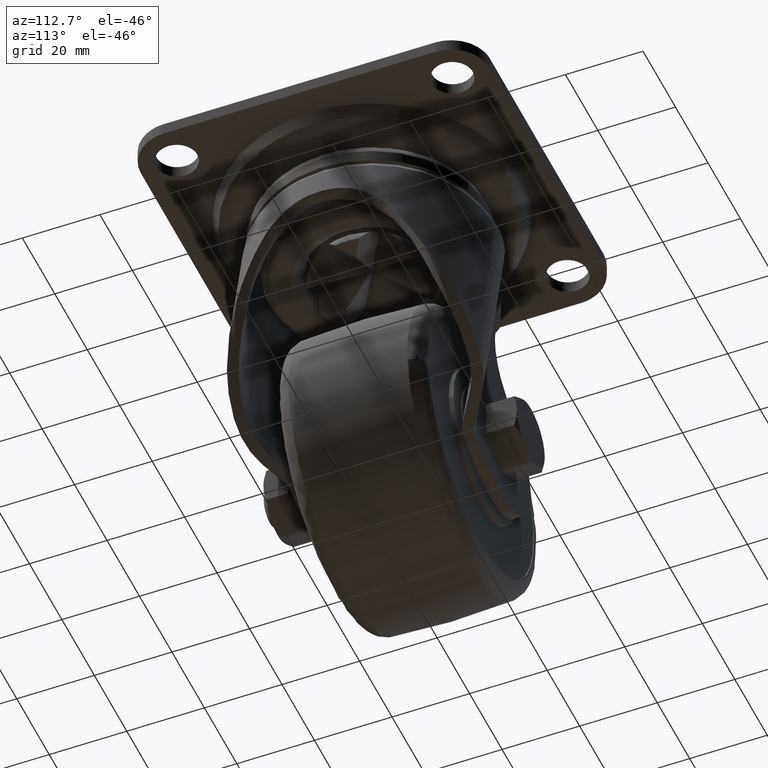
[diagram: clean part render]
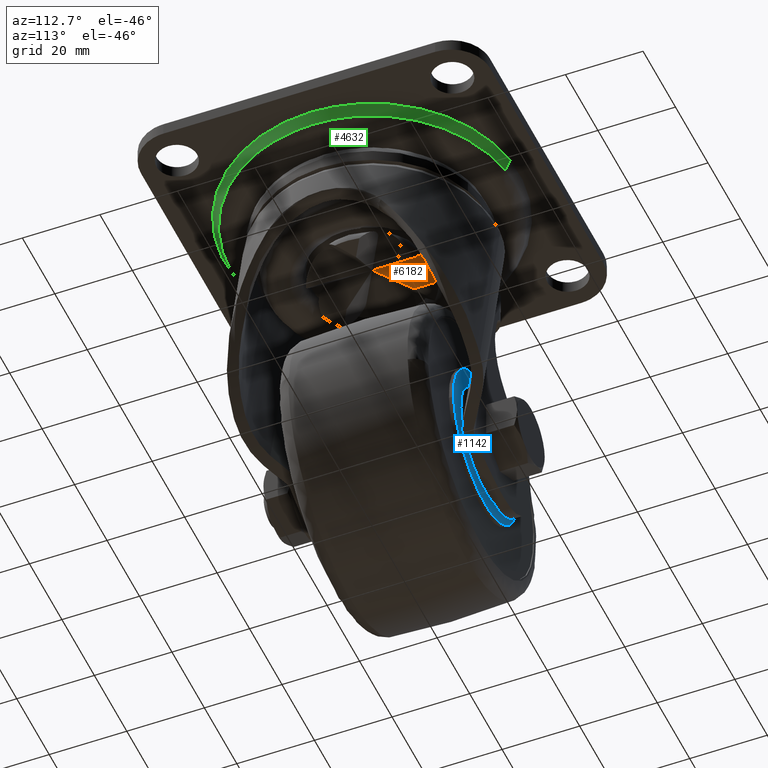
[diagram: same view with three faces highlighted in distinct colors, each labeled with its STEP entity id]
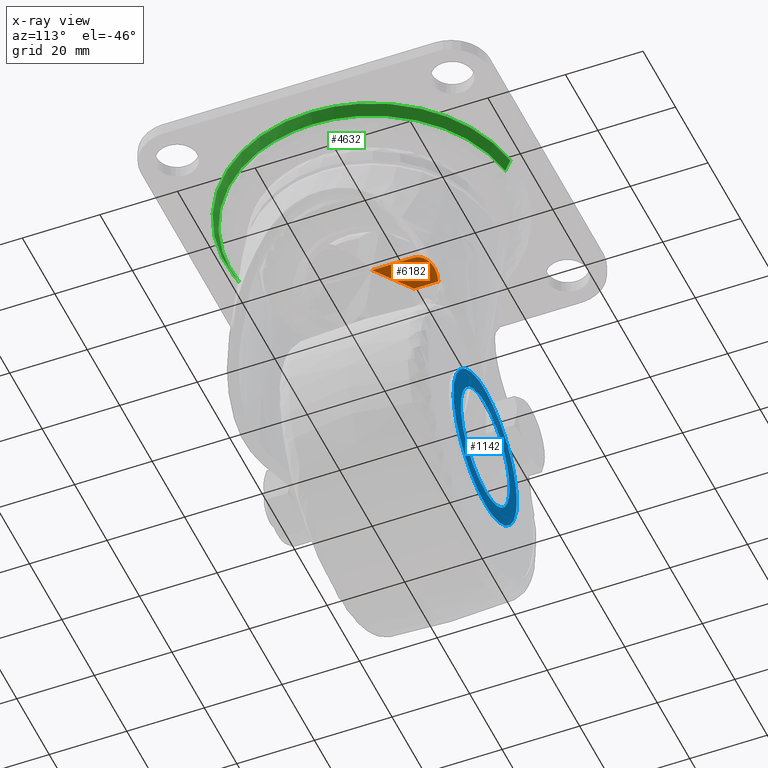
[diagram: x-ray of the same camera — body ghosted, the three highlighted faces saturated]
A machine part, auxiliary view with three faces highlighted in distinct colors.
The next image is the same camera in x-ray (body ghosted, the three faces saturated) — at least one of them is partly hidden behind the body in this view.
Their STEP definitions:

[orange] entity #6182 — the highlighted face is a freeform B-spline surface patch.
#5305=CARTESIAN_POINT('',(-2.881881E-013,-1.665335E-013,-21.0));
#5306=VERTEX_POINT('',#5305);
#5878=CARTESIAN_POINT('',(0.0,10.750000000000000,-21.0));
#5879=VERTEX_POINT('',#5878);
#5893=CARTESIAN_POINT('',(-5.0,14.935277031243841,-26.0));
#5894=VERTEX_POINT('',#5893);
#5895=CARTESIAN_POINT('',(-4.999999999999998,14.935277031243849,-26.0));
#5896=CARTESIAN_POINT('',(-4.728821234962187,15.026061676373139,-25.728821234962190));
#5897=CARTESIAN_POINT('',(-4.456393146544119,15.085996497553770,-25.456393146544119));
#5898=CARTESIAN_POINT('',(-3.909006104591157,15.143370916880301,-24.909006104591160));
#5899=CARTESIAN_POINT('',(-3.634050092896684,15.140883158555020,-24.634050092896690));
#5900=CARTESIAN_POINT('',(-3.288607308404021,15.094615385016990,-24.288607308404021));
#5901=CARTESIAN_POINT('',(-3.219255220768975,15.083148223534590,-24.219255220768979));
#5902=CARTESIAN_POINT('',(-3.081319171905169,15.055871377752410,-24.081319171905172));
#5903=CARTESIAN_POINT('',(-3.012800481734289,15.040088218470000,-24.012800481734288));
#5904=CARTESIAN_POINT('',(-2.808595968010706,14.986287567672290,-23.808595968010710));
#5905=CARTESIAN_POINT('',(-2.674258274598220,14.941835259089171,-23.674258274598220));
#5906=CARTESIAN_POINT('',(-2.409276430200436,14.835300838136179,-23.409276430200439));
#5907=CARTESIAN_POINT('',(-2.278631241724941,14.773223677854700,-23.278631241724948));
#5908=CARTESIAN_POINT('',(-2.085596173098578,14.666109675619159,-23.085596173098580));
#5909=CARTESIAN_POINT('',(-2.021740975388742,14.628067002964400,-23.021740975388749));
#5910=CARTESIAN_POINT('',(-1.895052443199339,14.547104158992910,-22.895052443199351));
#5911=CARTESIAN_POINT('',(-1.832038405705427,14.504046325282101,-22.832038405705418));
#5912=CARTESIAN_POINT('',(-1.646286081721323,14.368424382210630,-22.646286081721311));
#5913=CARTESIAN_POINT('',(-1.526752030011857,14.269468982298930,-22.526752030011860));
#5914=CARTESIAN_POINT('',(-1.296533376556251,14.053984572097040,-22.296533376556251));
#5915=CARTESIAN_POINT('',(-1.185845019687259,13.937463018887930,-22.185845019687250));
#5916=CARTESIAN_POINT('',(-1.026926351819034,13.748553671563601,-22.026926351819039));
#5917=CARTESIAN_POINT('',(-0.975142479929227,13.683222688301729,-21.975142479929229));
#5918=CARTESIAN_POINT('',(-0.874082980473878,13.547579744579220,-21.874082980473879));
#5919=CARTESIAN_POINT('',(-0.824697844114052,13.477075982662789,-21.824697844114059));
#5920=CARTESIAN_POINT('',(-0.682440159057429,13.260585383272090,-21.682440159057428));
#5921=CARTESIAN_POINT('',(-0.594848141657144,13.108932136964309,-21.594848141657149));
#5922=CARTESIAN_POINT('',(-0.434841068627161,12.790281673353350,-21.434841068627168));
#5923=CARTESIAN_POINT('',(-0.362415031534353,12.623295558354680,-21.362415031534351));
#5924=CARTESIAN_POINT('',(-0.282371095723011,12.403958886042171,-21.282371095723018));
#5925=CARTESIAN_POINT('',(-0.266856794579737,12.359457266251580,-21.266856794579741));
#5926=CARTESIAN_POINT('',(-0.237103889300535,12.269910764938190,-21.237103889300538));
#5927=CARTESIAN_POINT('',(-0.194407040711843,12.134865507305079,-21.194407040711852));
#5928=CARTESIAN_POINT('',(-0.157489257470454,11.997650663957060,-21.157489257470459));
#5929=CARTESIAN_POINT('',(-0.091409426795495,11.720309306842720,-21.091409426795501));
#5930=CARTESIAN_POINT('',(-0.057659291884305,11.531547068344080,-21.057659291884299));
#5931=CARTESIAN_POINT('',(-0.023346788679003,11.242279571666160,-21.023346788679010));
#5932=CARTESIAN_POINT('',(-0.014637230590430,11.144832944170620,-21.014637230590420));
#5933=CARTESIAN_POINT('',(-0.005863442205441,10.997052238432881,-21.005863442205449));
#5934=CARTESIAN_POINT('',(-0.003653742240349,10.947409700509819,-21.003653742240349));
#5935=CARTESIAN_POINT('',(-0.000726096002888,10.848524956846139,-21.000726096002889));
#5936=CARTESIAN_POINT('',(3.470066E-014,10.799203147555650,-20.999999999999961));
#5937=CARTESIAN_POINT('',(3.465109E-014,10.749999999999989,-20.999999999999972));
#5938=B_SPLINE_CURVE_WITH_KNOTS('',3,(#5895,#5896,#5897,#5898,#5899,#5900,#5901,#5902,#5903,#5904,#5905,#5906,#5907,#5908,#5909,#5910,#5911,#5912,#5913,#5914,#5915,#5916,#5917,#5918,#5919,#5920,#5921,#5922,#5923,#5924,#5925,#5926,#5927,#5928,#5929,#5930,#5931,#5932,#5933,#5934,#5935,#5936,#5937),.UNSPECIFIED.,.F.,.U.,(4,2,2,2,2,2,2,2,2,2,2,2,2,2,2,2,1,2,2,2,2,4),(0.0,0.125000000000003,0.250000000000005,0.281250000000006,0.312500000000006,0.375000000000006,0.437500000000007,0.468750000000007,0.500000000000007,0.562500000000006,0.625000000000006,0.656250000000005,0.687500000000005,0.750000000000004,0.812500000000003,0.828125000000002,0.843750000000002,0.875000000000002,0.937500000000001,0.968750000000001,0.984375000000000,1.0),.UNSPECIFIED.);
#5939=EDGE_CURVE('',#5894,#5879,#5938,.T.);
#5962=CARTESIAN_POINT('',(-5.000000000000110,8.660254037844990,-26.0));
#5963=VERTEX_POINT('',#5962);
#5970=CARTESIAN_POINT('',(-5.000000000000110,8.660254037844990,-26.0));
#5971=CARTESIAN_POINT('',(-5.0,14.935277031243841,-26.0));
#5972=QUASI_UNIFORM_CURVE('',1,(#5970,#5971),.UNSPECIFIED.,.F.,.U.);
#5973=EDGE_CURVE('',#5963,#5894,#5972,.T.);
#6126=CARTESIAN_POINT('',(-2.881881E-013,-1.665335E-013,-21.0));
#6127=CARTESIAN_POINT('',(-5.000000000000110,8.660254037844990,-26.0));
#6128=QUASI_UNIFORM_CURVE('',1,(#6126,#6127),.UNSPECIFIED.,.F.,.U.);
#6129=EDGE_CURVE('',#5306,#5963,#6128,.T.);
#6167=CARTESIAN_POINT('',(-5.249749990309087,-0.755892616972131,-26.249749990309091));
#6168=CARTESIAN_POINT('',(0.249750124419484,-0.755892616972131,-20.750249875580518));
#6169=CARTESIAN_POINT('',(-5.249749990309087,15.888878934749570,-26.249749990309091));
#6170=CARTESIAN_POINT('',(0.249750124419484,15.888878934749570,-20.750249875580518));
#6171=B_SPLINE_SURFACE_WITH_KNOTS('',1,1,((#6167,#6169),(#6168,#6170)),.UNSPECIFIED.,.F.,.F.,.U.,(2,2),(2,2),(0.0,7.777467648521536),(0.0,16.644771551721700),.UNSPECIFIED.);
#6172=CARTESIAN_POINT('',(0.0,10.750000000000000,-21.0));
#6173=CARTESIAN_POINT('',(-2.881881E-013,-1.665335E-013,-21.0));
#6174=QUASI_UNIFORM_CURVE('',1,(#6172,#6173),.UNSPECIFIED.,.F.,.U.);
#6175=EDGE_CURVE('',#5879,#5306,#6174,.T.);
#6176=ORIENTED_EDGE('',*,*,#6175,.T.);
#6177=ORIENTED_EDGE('',*,*,#6129,.T.);
#6178=ORIENTED_EDGE('',*,*,#5973,.T.);
#6179=ORIENTED_EDGE('',*,*,#5939,.T.);
#6180=EDGE_LOOP('',(#6176,#6177,#6178,#6179));
#6181=FACE_OUTER_BOUND('',#6180,.T.);
#6182=ADVANCED_FACE('',(#6181),#6171,.F.);

[blue] entity #1142 — the highlighted face is a freeform B-spline surface patch.
#761=CARTESIAN_POINT('',(-7.027978023676607,19.899999999999999,-69.415728093098195));
#762=VERTEX_POINT('',#761);
#763=CARTESIAN_POINT('',(-22.0,19.899999999999999,-53.500000000000007));
#764=VERTEX_POINT('',#763);
#765=CARTESIAN_POINT('',(-7.027978023676605,19.900000000000002,-69.415728093098167));
#766=CARTESIAN_POINT('',(-7.0,19.900000000000006,-68.958291449516608));
#767=CARTESIAN_POINT('',(-7.0,19.899999999999999,-68.500000000000000));
#768=CARTESIAN_POINT('',(-6.999999999999999,19.900000000000009,-53.500000000000007));
#769=CARTESIAN_POINT('',(-22.0,19.899999999999999,-53.500000000000007));
#777=(BOUNDED_CURVE()B_SPLINE_CURVE(2,(#765,#766,#767,#768,#769),.UNSPECIFIED.,.F.,.U.)B_SPLINE_CURVE_WITH_KNOTS((3,2,3),(0.239332962241100,0.250000000000000,0.500000000000000),.UNSPECIFIED.)CURVE()GEOMETRIC_REPRESENTATION_ITEM()RATIONAL_B_SPLINE_CURVE((0.976072041671341,0.987502787902365,1.0,0.707106781186547,1.0))REPRESENTATION_ITEM(''));
#778=EDGE_CURVE('',#762,#764,#777,.T.);
#787=CARTESIAN_POINT('',(-36.972021976323390,19.899999999999999,-67.584271906901805));
#788=VERTEX_POINT('',#787);
#794=CARTESIAN_POINT('',(-22.0,19.899999999999999,-53.500000000000007));
#795=CARTESIAN_POINT('',(-36.110591003514294,19.900000000000006,-53.500000000000000));
#796=CARTESIAN_POINT('',(-36.972021976323397,19.900000000000002,-67.584271906901819));
#804=(BOUNDED_CURVE()B_SPLINE_CURVE(2,(#794,#795,#796),.UNSPECIFIED.,.F.,.U.)B_SPLINE_CURVE_WITH_KNOTS((3,3),(0.500000000000000,0.739332962241100),.UNSPECIFIED.)CURVE()GEOMETRIC_REPRESENTATION_ITEM()RATIONAL_B_SPLINE_CURVE((1.0,0.719603993284183,0.976072041671341))REPRESENTATION_ITEM(''));
#805=EDGE_CURVE('',#764,#788,#804,.T.);
#828=CARTESIAN_POINT('',(-22.0,19.899999999999999,-83.500000000000000));
#829=VERTEX_POINT('',#828);
#830=CARTESIAN_POINT('',(-22.0,19.899999999999999,-83.500000000000000));
#831=CARTESIAN_POINT('',(-7.889408996485718,19.900000000000002,-83.499999999999986));
#832=CARTESIAN_POINT('',(-7.027978023676605,19.900000000000006,-69.415728093098210));
#840=(BOUNDED_CURVE()B_SPLINE_CURVE(2,(#830,#831,#832),.UNSPECIFIED.,.F.,.U.)B_SPLINE_CURVE_WITH_KNOTS((3,3),(0.0,0.239332962241100),.UNSPECIFIED.)CURVE()GEOMETRIC_REPRESENTATION_ITEM()RATIONAL_B_SPLINE_CURVE((1.0,0.719603993284183,0.976072041671341))REPRESENTATION_ITEM(''));
#841=EDGE_CURVE('',#829,#762,#840,.T.);
#843=CARTESIAN_POINT('',(-36.972021976323390,19.900000000000006,-67.584271906901805));
#844=CARTESIAN_POINT('',(-37.0,19.900000000000006,-68.041708550483392));
#845=CARTESIAN_POINT('',(-37.0,19.899999999999999,-68.500000000000000));
#846=CARTESIAN_POINT('',(-37.000000000000007,19.900000000000009,-83.500000000000000));
#847=CARTESIAN_POINT('',(-22.0,19.899999999999999,-83.500000000000000));
#855=(BOUNDED_CURVE()B_SPLINE_CURVE(2,(#843,#844,#845,#846,#847),.UNSPECIFIED.,.F.,.U.)B_SPLINE_CURVE_WITH_KNOTS((3,2,3),(0.739332962241100,0.750000000000000,1.0),.UNSPECIFIED.)CURVE()GEOMETRIC_REPRESENTATION_ITEM()RATIONAL_B_SPLINE_CURVE((0.976072041671341,0.987502787902365,1.0,0.707106781186547,1.0))REPRESENTATION_ITEM(''));
#856=EDGE_CURVE('',#788,#829,#855,.T.);
#1065=CARTESIAN_POINT('',(-43.447570052529180,19.899999999999999,-47.051950075589573));
#1066=CARTESIAN_POINT('',(-43.447570052529180,19.899999999999999,-89.948050970471968));
#1067=CARTESIAN_POINT('',(-0.552430644845163,19.899999999999999,-47.051950075589573));
#1068=CARTESIAN_POINT('',(-0.552430644845163,19.899999999999999,-89.948050970471968));
#1069=B_SPLINE_SURFACE_WITH_KNOTS('',1,1,((#1065,#1067),(#1066,#1068)),.UNSPECIFIED.,.F.,.F.,.U.,(2,2),(2,2),(0.0,42.896100894882402),(0.0,42.895139407684013),.UNSPECIFIED.);
#1070=CARTESIAN_POINT('',(-41.463630303671167,19.899999999999999,-67.309581837669725));
#1071=VERTEX_POINT('',#1070);
#1072=CARTESIAN_POINT('',(-22.0,19.899999999999999,-88.000000000000014));
#1073=VERTEX_POINT('',#1072);
#1074=CARTESIAN_POINT('',(-41.463630303671174,19.900000000000002,-67.309581837669725));
#1075=CARTESIAN_POINT('',(-41.499999999979643,19.900000000000002,-67.904235334734281));
#1076=CARTESIAN_POINT('',(-41.499999999979948,19.899999999999999,-68.500000000001222));
#1077=CARTESIAN_POINT('',(-41.499999999990280,19.900000000000006,-88.000000000000611));
#1078=CARTESIAN_POINT('',(-22.0,19.899999999999999,-88.000000000000014));
#1086=(BOUNDED_CURVE()B_SPLINE_CURVE(2,(#1074,#1075,#1076,#1077,#1078),.UNSPECIFIED.,.F.,.U.)B_SPLINE_CURVE_WITH_KNOTS((3,2,3),(0.739333213643509,0.750000000000000,1.0),.UNSPECIFIED.)CURVE()GEOMETRIC_REPRESENTATION_ITEM()RATIONAL_B_SPLINE_CURVE((0.976072580475152,0.987503082438608,1.0,0.707106781186548,1.0))REPRESENTATION_ITEM(''));
#1087=EDGE_CURVE('',#1071,#1073,#1086,.T.);
#1088=ORIENTED_EDGE('',*,*,#1087,.F.);
#1089=CARTESIAN_POINT('',(-22.0,19.899999999999999,-49.0));
#1090=VERTEX_POINT('',#1089);
#1091=CARTESIAN_POINT('',(-22.0,19.899999999999999,-49.0));
#1092=CARTESIAN_POINT('',(-40.343795081568693,19.899999999999999,-49.000000000000632));
#1093=CARTESIAN_POINT('',(-41.463630303671174,19.900000000000002,-67.309581837669725));
#1101=(BOUNDED_CURVE()B_SPLINE_CURVE(2,(#1091,#1092,#1093),.UNSPECIFIED.,.F.,.U.)B_SPLINE_CURVE_WITH_KNOTS((3,3),(0.500000000000000,0.739333213643509),.UNSPECIFIED.)CURVE()GEOMETRIC_REPRESENTATION_ITEM()RATIONAL_B_SPLINE_CURVE((1.0,0.719603698747940,0.976072580475152))REPRESENTATION_ITEM(''));
#1102=EDGE_CURVE('',#1090,#1071,#1101,.T.);
#1103=ORIENTED_EDGE('',*,*,#1102,.F.);
#1104=CARTESIAN_POINT('',(-2.536369696328826,19.899999999999999,-69.690418162330275));
#1105=VERTEX_POINT('',#1104);
#1106=CARTESIAN_POINT('',(-2.536369696328823,19.899999999999999,-69.690418162330275));
#1107=CARTESIAN_POINT('',(-2.500000000020367,19.899999999999999,-69.095764665265705));
#1108=CARTESIAN_POINT('',(-2.500000000020052,19.899999999999999,-68.499999999998764));
#1109=CARTESIAN_POINT('',(-2.500000000009720,19.900000000000006,-48.999999999999410));
#1110=CARTESIAN_POINT('',(-22.0,19.899999999999999,-49.0));
#1118=(BOUNDED_CURVE()B_SPLINE_CURVE(2,(#1106,#1107,#1108,#1109,#1110),.UNSPECIFIED.,.F.,.U.)B_SPLINE_CURVE_WITH_KNOTS((3,2,3),(0.239333213643509,0.250000000000000,0.500000000000000),.UNSPECIFIED.)CURVE()GEOMETRIC_REPRESENTATION_ITEM()RATIONAL_B_SPLINE_CURVE((0.976072580475152,0.987503082438608,1.0,0.707106781186548,1.0))REPRESENTATION_ITEM(''));
#1119=EDGE_CURVE('',#1105,#1090,#1118,.T.);
#1120=ORIENTED_EDGE('',*,*,#1119,.F.);
#1121=CARTESIAN_POINT('',(-22.0,19.899999999999999,-88.000000000000014));
#1122=CARTESIAN_POINT('',(-3.656204918431297,19.900000000000002,-87.999999999999389));
#1123=CARTESIAN_POINT('',(-2.536369696328823,19.899999999999999,-69.690418162330275));
#1131=(BOUNDED_CURVE()B_SPLINE_CURVE(2,(#1121,#1122,#1123),.UNSPECIFIED.,.F.,.U.)B_SPLINE_CURVE_WITH_KNOTS((3,3),(0.0,0.239333213643509),.UNSPECIFIED.)CURVE()GEOMETRIC_REPRESENTATION_ITEM()RATIONAL_B_SPLINE_CURVE((1.0,0.719603698747940,0.976072580475152))REPRESENTATION_ITEM(''));
#1132=EDGE_CURVE('',#1073,#1105,#1131,.T.);
#1133=ORIENTED_EDGE('',*,*,#1132,.F.);
#1134=EDGE_LOOP('',(#1088,#1103,#1120,#1133));
#1135=FACE_OUTER_BOUND('',#1134,.T.);
#1136=ORIENTED_EDGE('',*,*,#805,.T.);
#1137=ORIENTED_EDGE('',*,*,#856,.T.);
#1138=ORIENTED_EDGE('',*,*,#841,.T.);
#1139=ORIENTED_EDGE('',*,*,#778,.T.);
#1140=EDGE_LOOP('',(#1136,#1137,#1138,#1139));
#1141=FACE_BOUND('',#1140,.T.);
#1142=ADVANCED_FACE('',(#1135,#1141),#1069,.F.);

[green] entity #4632 — the highlighted face is a freeform B-spline surface patch.
#4065=CARTESIAN_POINT('',(4.959995304372351,37.674904732204382,-3.199999999998216));
#4066=VERTEX_POINT('',#4065);
#4082=CARTESIAN_POINT('',(-4.959995304372356,-37.674904732204368,-3.199999999998215));
#4083=VERTEX_POINT('',#4082);
#4097=CARTESIAN_POINT('',(38.0,0.0,-3.200000000000105));
#4098=VERTEX_POINT('',#4097);
#4099=CARTESIAN_POINT('',(38.0,0.0,-3.200000000000105));
#4100=CARTESIAN_POINT('',(37.999999999999950,-38.000000000000398,-3.199999999999277));
#4101=CARTESIAN_POINT('',(-1.008589E-013,-38.000000000000867,-3.199999999998332));
#4102=CARTESIAN_POINT('',(-2.490651586984368,-38.000000000000895,-3.199999999998270));
#4103=CARTESIAN_POINT('',(-4.959995304372356,-37.674904732204368,-3.199999999998215));
#4111=(BOUNDED_CURVE()B_SPLINE_CURVE(2,(#4099,#4100,#4101,#4102,#4103),.UNSPECIFIED.,.F.,.U.)B_SPLINE_CURVE_WITH_KNOTS((3,2,3),(0.500000000000000,0.750000000000000,0.772560615555887),.UNSPECIFIED.)CURVE()GEOMETRIC_REPRESENTATION_ITEM()RATIONAL_B_SPLINE_CURVE((1.0,0.707106781186548,1.0,0.973568594765693,0.951907659708131))REPRESENTATION_ITEM(''));
#4112=EDGE_CURVE('',#4098,#4083,#4111,.T.);
#4114=CARTESIAN_POINT('',(4.959995304372351,37.674904732204382,-3.199999999998215));
#4115=CARTESIAN_POINT('',(38.000000000000057,33.325105593716053,-3.199999999999161));
#4116=CARTESIAN_POINT('',(38.0,0.0,-3.200000000000105));
#4124=(BOUNDED_CURVE()B_SPLINE_CURVE(2,(#4114,#4115,#4116),.UNSPECIFIED.,.F.,.U.)B_SPLINE_CURVE_WITH_KNOTS((3,3),(0.272560615555887,0.500000000000000),.UNSPECIFIED.)CURVE()GEOMETRIC_REPRESENTATION_ITEM()RATIONAL_B_SPLINE_CURVE((0.951907659708131,0.733538186420854,1.0))REPRESENTATION_ITEM(''));
#4125=EDGE_CURVE('',#4066,#4098,#4124,.T.);
#4551=CARTESIAN_POINT('',(-4.773435795711135,-36.257844577102368,-6.058575730390285));
#4552=CARTESIAN_POINT('',(31.484408781391238,-41.031280372813512,-6.058575730390285));
#4553=CARTESIAN_POINT('',(36.257844577102368,-4.773435795711135,-6.058575730390285));
#4554=CARTESIAN_POINT('',(41.031280372813512,31.484408781391238,-6.058575730390285));
#4555=CARTESIAN_POINT('',(4.773435795711135,36.257844577102368,-6.058575730390285));
#4556=CARTESIAN_POINT('',(-4.964659292078220,-37.710331236082340,-3.128535606740350));
#4557=CARTESIAN_POINT('',(32.745671944004116,-42.674990528160556,-3.128535606740351));
#4558=CARTESIAN_POINT('',(37.710331236082340,-4.964659292078220,-3.128535606740350));
#4559=CARTESIAN_POINT('',(42.674990528160556,32.745671944004116,-3.128535606740351));
#4560=CARTESIAN_POINT('',(4.964659292078220,37.710331236082340,-3.128535606740350));
#4568=(BOUNDED_SURFACE()B_SPLINE_SURFACE(2,1,((#4551,#4556),(#4552,#4557),(#4553,#4558),(#4554,#4559),(#4555,#4560)),.UNSPECIFIED.,.F.,.F.,.U.)B_SPLINE_SURFACE_WITH_KNOTS((3,2,3),(2,2),(0.0,63.019664524450910,126.039329048901810),(0.0,3.275884467785179),.UNSPECIFIED.)GEOMETRIC_REPRESENTATION_ITEM()RATIONAL_B_SPLINE_SURFACE(((1.0,1.0),(0.707106781186548,0.707106781186548),(1.0,1.0),(0.707106781186548,0.707106781186548),(1.0,1.0)))REPRESENTATION_ITEM('')SURFACE());
#4569=CARTESIAN_POINT('',(33.121712512793813,-15.585894841132991,-5.988854371112476));
#4570=VERTEX_POINT('',#4569);
#4571=CARTESIAN_POINT('',(-4.777986027655198,-36.292407019966447,-5.988854371025575));
#4572=VERTEX_POINT('',#4571);
#4573=CARTESIAN_POINT('',(33.121712512793806,-15.585894841132996,-5.988854371112476));
#4574=CARTESIAN_POINT('',(23.230602877108627,-36.605572769489889,-5.988854371096199));
#4575=CARTESIAN_POINT('',(-4.567333E-011,-36.605572769496092,-5.988854371037728));
#4576=CARTESIAN_POINT('',(-2.399255997680098,-36.605572769496732,-5.988854371031691));
#4577=CARTESIAN_POINT('',(-4.777986027655198,-36.292407019966447,-5.988854371025575));
#4585=(BOUNDED_CURVE()B_SPLINE_CURVE(2,(#4573,#4574,#4575,#4576,#4577),.UNSPECIFIED.,.F.,.U.)B_SPLINE_CURVE_WITH_KNOTS((3,2,3),(0.572331535363646,0.750000000000000,0.772560615555722),.UNSPECIFIED.)CURVE()GEOMETRIC_REPRESENTATION_ITEM()RATIONAL_B_SPLINE_CURVE((0.879552628112303,0.791848446044056,1.0,0.973568594765887,0.951907659708449))REPRESENTATION_ITEM(''));
#4586=EDGE_CURVE('',#4570,#4572,#4585,.T.);
#4587=ORIENTED_EDGE('',*,*,#4586,.F.);
#4588=CARTESIAN_POINT('',(36.605572769528301,0.0,-5.988854370942691));
#4589=VERTEX_POINT('',#4588);
#4590=CARTESIAN_POINT('',(36.605572769528301,0.0,-5.988854370942691));
#4591=CARTESIAN_POINT('',(36.605572769489896,-8.182314935605133,-5.988854371027583));
#4592=CARTESIAN_POINT('',(33.121712512793806,-15.585894841132996,-5.988854371112476));
#4600=(BOUNDED_CURVE()B_SPLINE_CURVE(2,(#4590,#4591,#4592),.UNSPECIFIED.,.F.,.U.)B_SPLINE_CURVE_WITH_KNOTS((3,3),(0.500000000000000,0.572331535363646),.UNSPECIFIED.)CURVE()GEOMETRIC_REPRESENTATION_ITEM()RATIONAL_B_SPLINE_CURVE((1.0,0.915258335142491,0.879552628112303))REPRESENTATION_ITEM(''));
#4601=EDGE_CURVE('',#4589,#4570,#4600,.T.);
#4602=ORIENTED_EDGE('',*,*,#4601,.F.);
#4603=CARTESIAN_POINT('',(4.777986027655203,36.292407019966433,-5.988854371025573));
#4604=VERTEX_POINT('',#4603);
#4605=CARTESIAN_POINT('',(4.777986027655203,36.292407019966433,-5.988854371025573));
#4606=CARTESIAN_POINT('',(36.605572769535108,32.102225733258770,-5.988854370954461));
#4607=CARTESIAN_POINT('',(36.605572769528301,0.0,-5.988854370942691));
#4615=(BOUNDED_CURVE()B_SPLINE_CURVE(2,(#4605,#4606,#4607),.UNSPECIFIED.,.F.,.U.)B_SPLINE_CURVE_WITH_KNOTS((3,3),(0.272560615555722,0.500000000000000),.UNSPECIFIED.)CURVE()GEOMETRIC_REPRESENTATION_ITEM()RATIONAL_B_SPLINE_CURVE((0.951907659708449,0.733538186420660,1.0))REPRESENTATION_ITEM(''));
#4616=EDGE_CURVE('',#4604,#4589,#4615,.T.);
#4617=ORIENTED_EDGE('',*,*,#4616,.F.);
#4618=CARTESIAN_POINT('',(4.777986027655203,36.292407019966433,-5.988854371025573));
#4619=CARTESIAN_POINT('',(4.959995304372351,37.674904732204382,-3.199999999998216));
#4620=QUASI_UNIFORM_CURVE('',1,(#4618,#4619),.UNSPECIFIED.,.F.,.U.);
#4621=EDGE_CURVE('',#4604,#4066,#4620,.T.);
#4622=ORIENTED_EDGE('',*,*,#4621,.T.);
#4623=ORIENTED_EDGE('',*,*,#4125,.T.);
#4624=ORIENTED_EDGE('',*,*,#4112,.T.);
#4625=CARTESIAN_POINT('',(-4.777986027655198,-36.292407019966447,-5.988854371025575));
#4626=CARTESIAN_POINT('',(-4.959995304372356,-37.674904732204368,-3.199999999998215));
#4627=QUASI_UNIFORM_CURVE('',1,(#4625,#4626),.UNSPECIFIED.,.F.,.U.);
#4628=EDGE_CURVE('',#4572,#4083,#4627,.T.);
#4629=ORIENTED_EDGE('',*,*,#4628,.F.);
#4630=EDGE_LOOP('',(#4587,#4602,#4617,#4622,#4623,#4624,#4629));
#4631=FACE_OUTER_BOUND('',#4630,.T.);
#4632=ADVANCED_FACE('',(#4631),#4568,.T.);